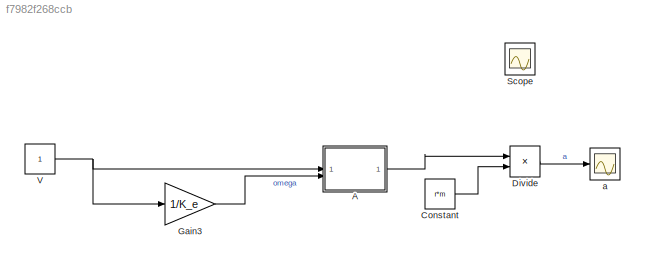
MODEL slx_f7982f268ccb
KIND model
CONFIG AbsTol = auto
CONFIG EnableMultiTasking = off
CONFIG FixedStep = auto
CONFIG MaxStep = auto
CONFIG MinStep = auto
CONFIG RelTol = 1e-3
CONFIG SampleTimeConstraint = Unconstrained
CONFIG SolverName = VariableStepAuto
CONFIG StartTime = 0.0
CONFIG StopTime = 10.0
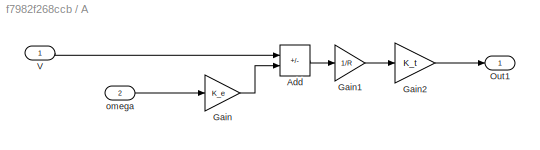
BLOCK [SubSystem] A
BLOCK [Sum] A/Add
  IconShape = rectangular
  Inputs = +-
BLOCK [Gain] A/Gain
  Gain = K_e
BLOCK [Gain] A/Gain1
  Gain = 1/R
BLOCK [Gain] A/Gain2
  Gain = K_t
BLOCK [Outport] A/Out1
BLOCK [Inport] A/V
BLOCK [Inport] A/omega
  Port = 2
BLOCK [Constant] Constant
  Value = r*m
BLOCK [Product] Divide
  Inputs = */
BLOCK [Gain] Gain3
  Gain = 1/K_e
BLOCK [Scope] Scope
  Floating = off
  NumInputPorts = 1
  ScopeSpecificationString = Simulink.scopes.TimeScopeBlockCfg('CurrentConfiguration', extmgr.ConfigurationSet(extmgr.Configuration('Core','General UI',true),extmgr.Configuration('Core','Source UI',true),extmgr.Configuration('Sources','WiredSimulink',true),extmgr.Configuration('Visuals','Time Domain',true,'SerializedDisplays',{struct('MinYLimReal','-1.00000','MaxYLimReal','1.00000','YLabelReal','','MinYLimMag','0.00000','MaxY...<+1416ch>
BLOCK [Constant] V
BLOCK [Scope] a
  Floating = off
  NumInputPorts = 1
  ScopeSpecificationString = Simulink.scopes.TimeScopeBlockCfg('CurrentConfiguration', extmgr.ConfigurationSet(extmgr.Configuration('Core','General UI',true),extmgr.Configuration('Core','Source UI',true),extmgr.Configuration('Sources','WiredSimulink',true,'DataLoggingVariableName','ScopeData1'),extmgr.Configuration('Visuals','Time Domain',true,'SerializedDisplays',{struct('MinYLimReal','-1.00000','MaxYLimReal','1.00000','YLab...<+1424ch>
LINE A/Add:1 -> A/Gain1:1
LINE A/Gain1:1 -> A/Gain2:1
LINE A/Gain2:1 -> A/Out1:1
LINE A/Gain:1 -> A/Add:2
LINE A/V:1 -> A/Add:1
LINE A/omega:1 -> A/Gain:1
LINE A:1 -> Divide:1
LINE Constant:1 -> Divide:2
LINE Divide:1 -> a:1
LINE Gain3:1 -> A:2
NET V:1 -> A:1, Gain3:1
note: NET lines group one-source signal fan-out (src -> all destinations, sorted); 1:1 wires keep LINE
